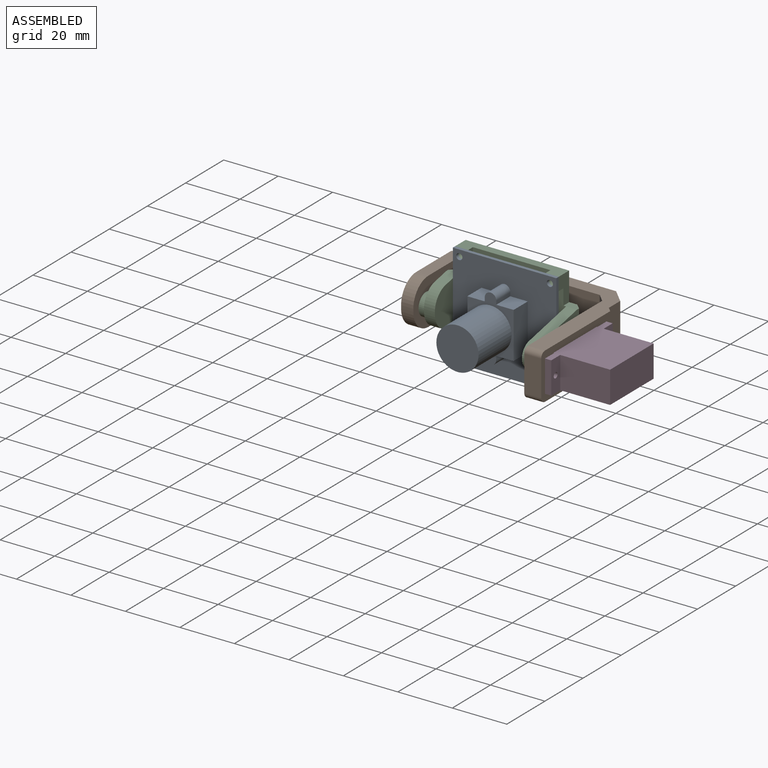
[diagram: assembled view]
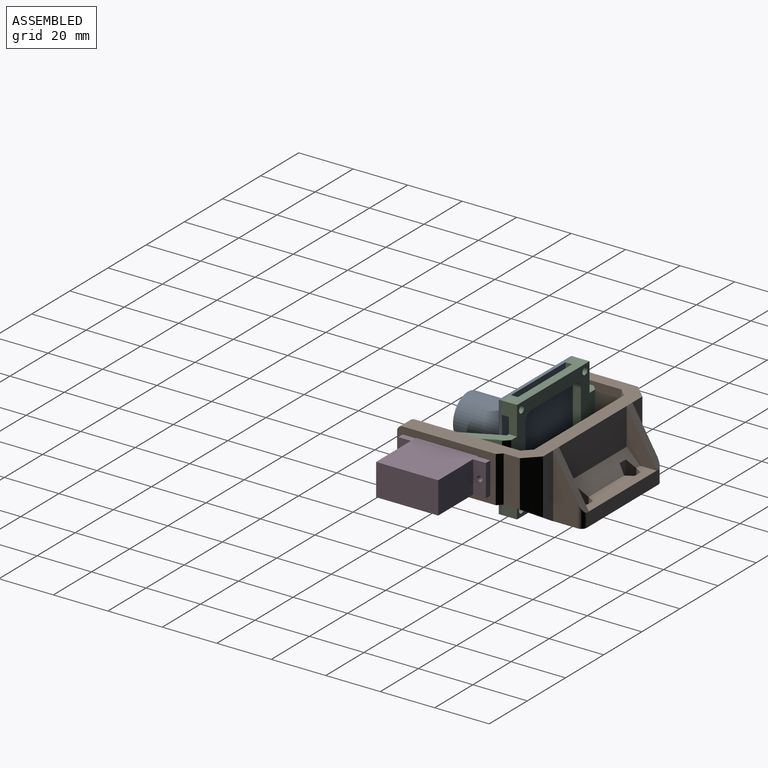
[diagram: assembled view, second angle]
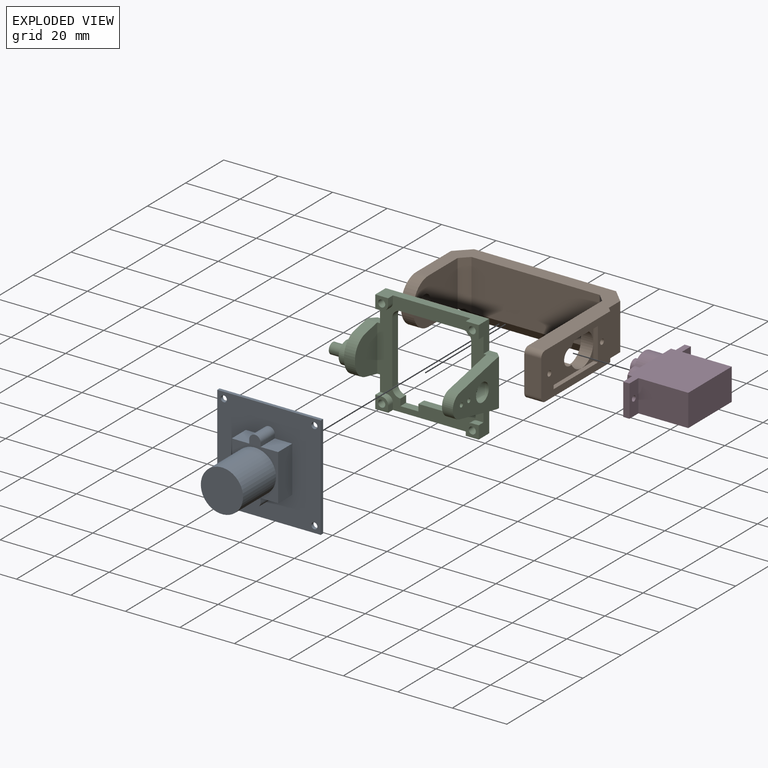
[diagram: exploded view]
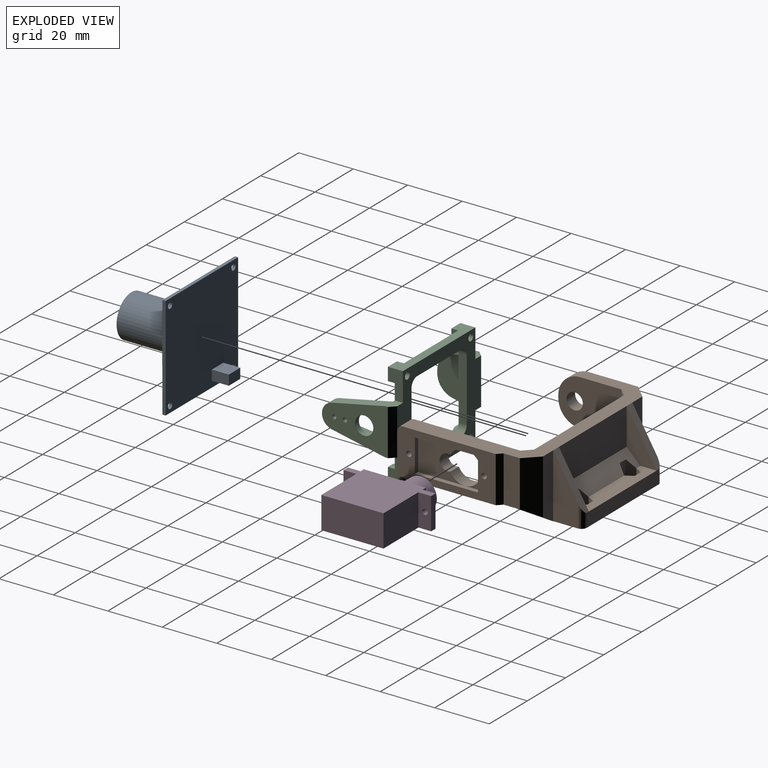
[diagram: exploded view, second angle]
ASSEMBLY  parts=4 mates=3
PART A: 30 faces, bbox 38x32.2x38 mm
  f0: plane 38x38mm, normal (0,-1,0), area 1113.5mm2, adj f1,f2,f3,f4,f5,f6,f7,f8
  f1: plane 38x1.2mm, normal (1,0,0), area 45.6mm2, adj f0,f2,f8,f9
  f2: plane 38x1.2mm, normal (0,0,1), area 45.6mm2, adj f0,f1,f3,f9
  f3: plane 38x1.2mm, normal (-1,0,0), area 45.6mm2, adj f0,f2,f8,f9
  f4: cylinder r=1.12mm len=2.25mm, axis (0,1,0), area 8.5mm2, adj f0,f9
  f5: cylinder r=1.12mm len=2.25mm, axis (0,1,0), area 8.5mm2, adj f0,f9
  f6: cylinder r=1.12mm len=2.25mm, axis (0,1,0), area 8.5mm2, adj f0,f9
  f7: cylinder r=1.12mm len=2.25mm, axis (0,1,0), area 8.5mm2, adj f0,f9
  f8: plane 38x1.2mm, normal (0,0,-1), area 45.6mm2, adj f0,f1,f3,f9
  f9: plane 38x38mm, normal (0,1,0), area 1405.9mm2, adj f1,f2,f3,f4,f5,f6,f7,f8
  f10: plane 7.4x6.4mm, normal (0,0,1), area 47.4mm2, adj f0,f11,f21,f22
  f11: plane 7.4x1.4mm, normal (1,0,0), area 10.4mm2, adj f0,f10,f12,f22
  f12: cylinder r=2.1mm len=7.4mm, axis (0,1,0), area 48.8mm2, adj f0,f11,f13,f22
  f13: plane 7.4x1.4mm, normal (-1,0,0), area 10.4mm2, adj f0,f12,f14,f22
  f14: plane 7.4x6.4mm, normal (0,0,1), area 47.4mm2, adj f0,f13,f15,f22
  f15: plane 17x7.4mm, normal (-1,0,0), area 125.8mm2, adj f0,f14,f16,f22
  f16: plane 7.4x6.4mm, normal (0,0,-1), area 47.4mm2, adj f0,f15,f17,f22
  f17: plane 7.4x1.4mm, normal (-1,0,0), area 10.4mm2, adj f0,f16,f18,f22
  f18: cylinder r=2.1mm len=7.4mm, axis (0,1,0), area 48.8mm2, adj f0,f17,f19,f22
  f19: plane 7.4x1.4mm, normal (1,0,0), area 10.4mm2, adj f0,f18,f20,f22
  f20: plane 7.4x6.4mm, normal (0,0,-1), area 47.4mm2, adj f0,f19,f21,f22
  f21: plane 17x7.4mm, normal (1,0,0), area 125.8mm2, adj f0,f10,f20,f22
  f22: plane 24x17mm, normal (0,-1,0), area 125.9mm2, adj f10,f11,f12,f13,f14,f15,f16,f17
  f23: cylinder r=7.75mm len=17.3mm, axis (0,1,0), area 842.4mm2, adj f22,f24
  f24: plane 15.5x15.5mm, normal (0,-1,0), area 188.7mm2, adj f23
  f25: plane 6.25x3.7mm, normal (-1,0,0), area 23.1mm2, adj f9,f26,f28,f29
  f26: plane 6.25x6mm, normal (0,0,-1), area 37.5mm2, adj f9,f25,f27,f29
  f27: plane 6.25x3.7mm, normal (1,0,0), area 23.1mm2, adj f9,f26,f28,f29
  f28: plane 6.25x6mm, normal (0,0,1), area 37.5mm2, adj f9,f25,f27,f29
  f29: plane 6x3.7mm, normal (0,1,0), area 22.2mm2, adj f25,f26,f27,f28
PART B: 80 faces, bbox 63.8x59.9x23.5 mm
  f0: plane 40.85x17mm, normal (-1,0,0), area 533.8mm2, adj f28,f42,f43,f46,f47,f57,f58,f64
  f1: plane 17.15x12.1mm, normal (1,0,0), area 133.8mm2, adj f49,f50,f52,f57,f58
  f2: plane 6.05x6.05mm, normal (1,0,0), area 7.9mm2, adj f49,f51,f58
  f3: plane 17x5.95mm, normal (1,0,0), area 101.2mm2, adj f28,f31,f42,f56,f63
  f4: plane 47.1x18.5mm, normal (0,-1,0), area 871.4mm2, adj f28,f37,f64,f65
  f5: plane 35.5x13.5mm, normal (0,1,0), area 479.3mm2, adj f28,f33,f34,f38
  f6: plane 35.5x6mm, normal (0,0,1), area 186.3mm2, adj f9,f15,f16,f17,f22,f23,f24,f33
  f7: plane 23.5x5.35mm, normal (0,1,0), area 117mm2, adj f8,f28,f31,f37,f63
  f8: plane 23.5x9mm, normal (1,0,0), area 143.4mm2, adj f7,f11,f36,f60
  f9: plane 37.5x5mm, normal (0,1,0), area 187.5mm2, adj f6,f11,f35,f36,f60,f61
  f10: plane 23.5x9mm, normal (-1,0,0), area 143.4mm2, adj f11,f29,f35,f61
  f11: plane 41.5x11mm, normal (0,0,-1), area 435.5mm2, adj f8,f9,f10,f12,f13,f37,f60,f61
  f12: cylinder r=1.75mm len=3.5mm, axis (0,0,-1), area 22mm2, adj f11,f27
  f13: cylinder r=1.75mm len=3.5mm, axis (0,0,-1), area 22mm2, adj f11,f20
  f14: plane 5.78x2.78mm, normal (-0.87,0.5,0), area 14.1mm2, adj f15,f19,f20,f38
  f15: plane 3x2.78mm, normal (-0.87,-0.5,0), area 9.6mm2, adj f6,f14,f16,f20
  f16: plane 3.2x3mm, normal (0,-1,0), area 9.6mm2, adj f6,f15,f17,f20
  f17: plane 3x2.78mm, normal (0.87,-0.5,0), area 9.6mm2, adj f6,f16,f18,f20
  f18: plane 5.78x2.78mm, normal (0.87,0.5,0), area 14.1mm2, adj f17,f19,f20,f38
  f19: plane 5.78x3.2mm, normal (0,1,0), area 18.5mm2, adj f14,f18,f20,f38
  f20: plane 6.41x5.55mm, normal (0,0,1), area 17.1mm2, adj f13,f14,f15,f16,f17,f18,f19
  f21: plane 5.78x2.78mm, normal (-0.87,0.5,0), area 14.1mm2, adj f22,f26,f27,f38
  f22: plane 3x2.78mm, normal (-0.87,-0.5,0), area 9.6mm2, adj f6,f21,f23,f27
  f23: plane 3.2x3mm, normal (0,-1,0), area 9.6mm2, adj f6,f22,f24,f27
  f24: plane 3x2.78mm, normal (0.87,-0.5,0), area 9.6mm2, adj f6,f23,f25,f27
  f25: plane 5.78x2.78mm, normal (0.87,0.5,0), area 14.1mm2, adj f24,f26,f27,f38
  f26: plane 5.78x3.2mm, normal (0,1,0), area 18.5mm2, adj f21,f25,f27,f38
  f27: plane 6.41x5.55mm, normal (0,0,1), area 17.1mm2, adj f12,f21,f22,f23,f24,f25,f26
  f28: plane 63.8x46.85mm, normal (0,0,1), area 624.3mm2, adj f0,f3,f4,f5,f7,f29,f30,f35
  f29: plane 23.5x5.25mm, normal (0,1,0), area 114.6mm2, adj f10,f28,f32,f62
  f30: plane 26.2x17mm, normal (-1,0,0), area 389.7mm2, adj f28,f32,f40,f41,f44,f45,f59,f62
  f31: plane 10.25x6.5mm, normal (0.54,0,-0.84), area 24.6mm2, adj f3,f7,f37,f63
  f32: plane 10.25x6.5mm, normal (-0.54,0,-0.84), area 24.6mm2, adj f29,f30,f37,f62
  f33: plane 18.5x11mm, normal (-1,0,0), area 89.3mm2, adj f5,f6,f36,f38
  f34: plane 18.5x11mm, normal (1,0,0), area 89.3mm2, adj f5,f6,f35,f38
  f35: plane 18.5x11mm, normal (0,0.86,0.51), area 62.9mm2, adj f9,f10,f28,f34,f61
  f36: plane 18.5x11mm, normal (0,0.86,0.51), area 62.9mm2, adj f8,f9,f28,f33,f60
  f37: plane 62.1x6.5mm, normal (0,-0.71,-0.71), area 373.5mm2, adj f4,f7,f11,f31,f32,f40,f42,f64
  f38: plane 35.5x5mm, normal (0,0.71,0.71), area 213.3mm2, adj f5,f6,f14,f18,f19,f21,f25,f26
  f39: plane 23.2x17mm, normal (1,0,0), area 338.7mm2, adj f28,f40,f41,f44,f45,f59,f65
  f40: plane 16.7x6mm, normal (0,0,-1), area 76.3mm2, adj f30,f37,f39,f45,f65
  f41: plane 4.5x1mm, normal (0,-1,0), area 4.5mm2, adj f30,f39,f44,f45
  f42: plane 40.35x7.7mm, normal (0,0,-1), area 242.3mm2, adj f0,f3,f37,f46,f48,f56,f64
  f43: plane 13x6.2mm, normal (0,-1,0), area 80.6mm2, adj f0,f46,f47,f48
  f44: cylinder r=8mm len=8mm, axis (-1,0,0), area 56.5mm2, adj f28,f30,f39,f41
  f45: cylinder r=8mm len=8mm, axis (-1,0,0), area 56.5mm2, adj f30,f39,f40,f41
  f46: cylinder r=2mm len=6.2mm, axis (-1,0,0), area 19.5mm2, adj f0,f42,f43,f48
  f47: cylinder r=2mm len=6.2mm, axis (-1,0,0), area 19.5mm2, adj f0,f28,f43,f48
  f48: plane 36.2x17mm, normal (1,0,0), area 326.7mm2, adj f28,f42,f43,f46,f47,f49,f50,f51
  f49: plane 23.2x1.7mm, normal (0,0,1), area 39.4mm2, adj f1,f2,f48,f50,f51
  f50: plane 12.1x1.7mm, normal (0,1,0), area 20.6mm2, adj f1,f48,f49,f52
  f51: plane 12.1x1.7mm, normal (0,-1,0), area 20.6mm2, adj f2,f48,f49,f52,f55
  f52: plane 23.2x1.7mm, normal (0,0,-1), area 39.4mm2, adj f1,f48,f50,f51,f55
  f53: cylinder r=1mm len=4.7mm, axis (-1,0,0), area 29.5mm2, adj f48,f79
  f54: cylinder r=1mm len=4.7mm, axis (-1,0,0), area 29.5mm2, adj f48,f72
  f55: plane 6.05x6.05mm, normal (1,0,0), area 7.9mm2, adj f51,f52,f58
  f56: plane 17x1.7mm, normal (0.71,0.71,0), area 40.9mm2, adj f3,f28,f42,f48
  f57: cylinder r=2.95mm len=5.9mm, axis (1,0,0), area 49.9mm2, adj f0,f1,f58
  f58: cylinder r=6.05mm len=12.1mm, axis (1,0,0), area 144.7mm2, adj f0,f1,f2,f55,f57
  f59: cylinder r=3mm len=6mm, axis (-1,0,0), area 84.8mm2, adj f30,f39
  f60: cylinder r=2mm len=8.36mm, axis (0,0,-1), area 19.5mm2, adj f8,f9,f11,f36
  f61: cylinder r=2mm len=8.36mm, axis (0,0,1), area 19.5mm2, adj f9,f10,f11,f35
  f62: plane 20.17x5mm, normal (-0.71,0.71,0), area 131.4mm2, adj f28,f29,f30,f32
  f63: plane 20.17x5mm, normal (0.71,0.71,0), area 131.4mm2, adj f3,f7,f28,f31
  f64: plane 18.5x3mm, normal (-0.71,-0.71,0), area 73.7mm2, adj f0,f4,f28,f37,f42
  f65: plane 18.5x3mm, normal (0.71,-0.71,0), area 73.7mm2, adj f4,f28,f37,f39,f40
  f66: plane 2x1.5mm, normal (0,0.5,-0.87), area 3.5mm2, adj f0,f67,f71,f72
  f67: plane 2x1.5mm, normal (0,-0.5,-0.87), area 3.5mm2, adj f0,f66,f68,f72
  f68: plane 2.31x1.5mm, normal (0,-1,0), area 3.5mm2, adj f0,f67,f69,f72
  f69: plane 2x1.5mm, normal (0,-0.5,0.87), area 3.5mm2, adj f0,f68,f70,f72
  f70: plane 2x1.5mm, normal (0,0.5,0.87), area 3.5mm2, adj f0,f69,f71,f72
  f71: plane 2.31x1.5mm, normal (0,1,0), area 3.5mm2, adj f0,f66,f70,f72
  f72: plane 4.62x4mm, normal (-1,0,0), area 10.7mm2, adj f54,f66,f67,f68,f69,f70,f71
  f73: plane 2x1.5mm, normal (0,-0.5,0.87), area 3.5mm2, adj f0,f74,f78,f79
  f74: plane 2x1.5mm, normal (0,0.5,0.87), area 3.5mm2, adj f0,f73,f75,f79
  f75: plane 2.31x1.5mm, normal (0,1,0), area 3.5mm2, adj f0,f74,f76,f79
  f76: plane 2x1.5mm, normal (0,0.5,-0.87), area 3.5mm2, adj f0,f75,f77,f79
  f77: plane 2x1.5mm, normal (0,-0.5,-0.87), area 3.5mm2, adj f0,f76,f78,f79
  f78: plane 2.31x1.5mm, normal (0,-1,0), area 3.5mm2, adj f0,f73,f77,f79
  f79: plane 4.62x4mm, normal (-1,0,0), area 10.7mm2, adj f53,f73,f74,f75,f76,f77,f78
PART C: 68 faces, bbox 55x26.2x38 mm
  f0: plane 17x12.7mm, normal (-1,0,0), area 124.4mm2, adj f17,f18,f56,f57,f58,f60,f64,f65
  f1: plane 40x38mm, normal (0,-1,0), area 542.8mm2, adj f2,f3,f4,f5,f6,f7,f8,f9
  f2: plane 3x2.5mm, normal (1,0,0), area 7.5mm2, adj f1,f19,f20,f37
  f3: plane 23x3mm, normal (1,0,0), area 69mm2, adj f1,f20,f37,f38
  f4: plane 23x3mm, normal (0,0,-1), area 69mm2, adj f1,f20,f38,f39
  f5: plane 23x3mm, normal (-1,0,0), area 69mm2, adj f1,f20,f39,f40
  f6: plane 16.4x3mm, normal (0,0,1), area 49.2mm2, adj f1,f7,f20,f40
  f7: plane 3x2.5mm, normal (-1,0,0), area 7.5mm2, adj f1,f6,f19,f20
  f8: plane 10.5x5.5mm, normal (-1,0,0), area 43.4mm2, adj f1,f9,f18,f20,f35,f36
  f9: plane 38x5.5mm, normal (0,0,-1), area 137.7mm2, adj f1,f8,f10,f20,f23,f24,f33,f36
  f10: plane 10.5x5.5mm, normal (1,0,0), area 43.4mm2, adj f1,f9,f11,f20,f21,f24
  f11: plane 5x3mm, normal (0,0,-1), area 13mm2, adj f1,f10,f12,f20,f45,f66
  f12: plane 24.22x17mm, normal (1,0,0), area 255mm2, adj f11,f13,f45,f46,f48,f51,f54,f55
  f13: plane 5x3mm, normal (0,0,1), area 13mm2, adj f1,f12,f14,f20,f46,f66
  f14: plane 10.5x5.5mm, normal (1,0,0), area 43.4mm2, adj f1,f13,f15,f20,f26,f28
  f15: plane 38x5.5mm, normal (0,0,1), area 137.7mm2, adj f1,f14,f16,f20,f27,f28,f30,f32
  f16: plane 10.5x5.5mm, normal (-1,0,0), area 43.4mm2, adj f1,f15,f17,f20,f31,f32
  f17: plane 5x3mm, normal (0,0,1), area 13mm2, adj f0,f1,f16,f20,f58,f67
  f18: plane 5x3mm, normal (0,0,-1), area 13mm2, adj f0,f1,f8,f20,f56,f67
  f19: plane 6.6x3mm, normal (0,0,1), area 19.8mm2, adj f1,f2,f7,f20
  f20: plane 44x38mm, normal (0,1,0), area 675mm2, adj f2,f3,f4,f5,f6,f7,f8,f9
  f21: plane 2.5x2.38mm, normal (0,0,1), area 5.9mm2, adj f1,f10,f22,f24
  f22: cylinder r=2.38mm len=2.5mm, axis (0,1,0), area 9.3mm2, adj f1,f21,f23,f24
  f23: plane 2.5x2.38mm, normal (-1,0,0), area 5.9mm2, adj f1,f9,f22,f24
  f24: plane 4.75x4.75mm, normal (0,-1,0), area 16mm2, adj f9,f10,f21,f22,f23,f44
  f25: cylinder r=2.38mm len=2.5mm, axis (0,1,0), area 9.3mm2, adj f1,f26,f27,f28
  f26: plane 2.5x2.38mm, normal (0,0,-1), area 5.9mm2, adj f1,f14,f25,f28
  f27: plane 2.5x2.38mm, normal (-1,0,0), area 5.9mm2, adj f1,f15,f25,f28
  f28: plane 4.75x4.75mm, normal (0,-1,0), area 16mm2, adj f14,f15,f25,f26,f27,f42
  f29: cylinder r=2.38mm len=2.5mm, axis (0,1,0), area 9.3mm2, adj f1,f30,f31,f32
  f30: plane 2.5x2.38mm, normal (1,0,0), area 5.9mm2, adj f1,f15,f29,f32
  f31: plane 2.5x2.38mm, normal (0,0,-1), area 5.9mm2, adj f1,f16,f29,f32
  f32: plane 4.75x4.75mm, normal (0,-1,0), area 16mm2, adj f15,f16,f29,f30,f31,f41
  f33: plane 2.5x2.38mm, normal (1,0,0), area 5.9mm2, adj f1,f9,f34,f36
  f34: cylinder r=2.38mm len=2.5mm, axis (0,1,0), area 9.3mm2, adj f1,f33,f35,f36
  f35: plane 2.5x2.38mm, normal (0,0,1), area 5.9mm2, adj f1,f8,f34,f36
  f36: plane 4.75x4.75mm, normal (0,-1,0), area 16mm2, adj f8,f9,f33,f34,f35,f43
  f37: cylinder r=3mm len=3mm, axis (0,1,0), area 14.1mm2, adj f1,f2,f3,f20
  f38: cylinder r=3mm len=3mm, axis (0,-1,0), area 14.1mm2, adj f1,f3,f4,f20
  f39: cylinder r=3mm len=3mm, axis (0,1,0), area 14.1mm2, adj f1,f4,f5,f20
  f40: cylinder r=3mm len=3mm, axis (0,-1,0), area 14.1mm2, adj f1,f5,f6,f20
  f41: cylinder r=1.3mm len=5.5mm, axis (0,1,0), area 44.9mm2, adj f20,f32
  f42: cylinder r=1.3mm len=5.5mm, axis (0,1,0), area 44.9mm2, adj f20,f28
  f43: cylinder r=1.3mm len=5.5mm, axis (0,1,0), area 44.9mm2, adj f20,f36
  f44: cylinder r=1.3mm len=5.5mm, axis (0,1,0), area 44.9mm2, adj f20,f24
  f45: plane 19.62x4.08mm, normal (0,-0.2,-0.98), area 80.2mm2, adj f11,f12,f51,f52
  f46: plane 19.62x4.08mm, normal (0,-0.2,0.98), area 80.2mm2, adj f12,f13,f51,f52
  f47: plane 10.84x2mm, normal (0,0.12,-0.99), area 21.8mm2, adj f48,f50,f52,f53
  f48: cylinder r=3.35mm len=6.7mm, axis (1,0,0), area 64.8mm2, adj f12,f47,f49,f52,f53
  f49: plane 10.84x2mm, normal (0,0.12,0.99), area 21.8mm2, adj f48,f50,f52,f53
  f50: cylinder r=2.01mm len=4mm, axis (1,0,0), area 11.7mm2, adj f47,f49,f52,f53
  f51: cylinder r=4.51mm len=8.84mm, axis (1,0,0), area 49.3mm2, adj f12,f45,f46,f52
  f52: plane 23.22x17mm, normal (-1,0,0), area 193.8mm2, adj f1,f45,f46,f47,f48,f49,f50,f51
  f53: plane 12.61x6.65mm, normal (-1,0,0), area 44.2mm2, adj f47,f48,f49,f50,f54,f55
  f54: cylinder r=0.8mm len=2mm, axis (1,0,0), area 10.1mm2, adj f12,f53
  f55: cylinder r=0.8mm len=2mm, axis (1,0,0), area 10.1mm2, adj f12,f53
  f56: plane 6.13x4mm, normal (0,-0.2,-0.98), area 25mm2, adj f0,f18,f59,f64
  f57: plane 4x0.75mm, normal (0,-1,0), area 3mm2, adj f0,f59,f64,f65
  f58: plane 6.13x4mm, normal (0,-0.2,0.98), area 25mm2, adj f0,f17,f59,f65
  f59: plane 17x11.7mm, normal (1,0,0), area 157.6mm2, adj f1,f56,f57,f58,f64,f65
  f60: cylinder r=4mm len=8mm, axis (1,0,0), area 50.3mm2, adj f0,f61
  f61: plane 8x8mm, normal (-1,0,0), area 37.7mm2, adj f60,f63
  f62: plane 4x4mm, normal (-1,0,0), area 12.6mm2, adj f63
  f63: cylinder r=2mm len=5mm, axis (1,0,0), area 62.8mm2, adj f61,f62
  f64: cylinder r=7mm len=6.85mm, axis (1,0,0), area 38.2mm2, adj f0,f56,f57,f59
  f65: cylinder r=7mm len=6.85mm, axis (-1,0,0), area 38.2mm2, adj f0,f57,f58,f59
  f66: plane 17x2mm, normal (0.71,0.71,0), area 48.1mm2, adj f11,f12,f13,f20
  f67: plane 17x2mm, normal (-0.71,0.71,0), area 48.1mm2, adj f0,f17,f18,f20
PART D: 25 faces, bbox 31.7x32.2x11.7 mm
  f0: plane 5.85x5.85mm, normal (-1,0,0), area 7.3mm2, adj f8,f12,f21
  f1: plane 32.2x22.3mm, normal (0,0,-1), area 530.1mm2, adj f2,f10,f11,f13,f14,f15,f16,f17
  f2: plane 16.95x11.7mm, normal (-1,0,0), area 129.3mm2, adj f1,f5,f6,f7,f8,f12,f19
  f3: cylinder r=2.25mm len=4.5mm, axis (1,0,0), area 52.3mm2, adj f4,f9
  f4: plane 4.5x4.5mm, normal (-1,0,0), area 15.9mm2, adj f3
  f5: plane 5.7x1.09mm, normal (0,0,1), area 6.2mm2, adj f2,f6,f8,f9
  f6: cylinder r=2.75mm len=5.7mm, axis (-1,0,0), area 49.2mm2, adj f2,f5,f7,f9
  f7: plane 5.7x1.09mm, normal (0,0,-1), area 6.2mm2, adj f2,f6,f8,f9
  f8: cylinder r=5.85mm len=11.7mm, axis (-1,0,0), area 176.9mm2, adj f0,f2,f5,f7,f9,f10
  f9: plane 14.85x11.7mm, normal (-1,0,0), area 106.9mm2, adj f3,f5,f6,f7,f8
  f10: plane 5.85x5.85mm, normal (-1,0,0), area 7.3mm2, adj f1,f8,f21
  f11: plane 18.3x11.7mm, normal (0,1,0), area 214.1mm2, adj f1,f12,f14,f16
  f12: plane 32.2x22.3mm, normal (0,0,1), area 530.1mm2, adj f0,f2,f11,f13,f14,f15,f16,f17
  f13: plane 18.3x11.7mm, normal (0,-1,0), area 214.1mm2, adj f1,f12,f14,f18
  f14: plane 22.8x11.7mm, normal (1,0,0), area 266.8mm2, adj f1,f11,f12,f13
  f15: plane 11.7x2.3mm, normal (0,1,0), area 26.9mm2, adj f1,f12,f16,f22
  f16: plane 11.7x4.7mm, normal (1,0,0), area 51.8mm2, adj f1,f11,f12,f15,f24
  f17: plane 11.7x2.3mm, normal (0,-1,0), area 26.9mm2, adj f1,f12,f18,f20
  f18: plane 11.7x4.7mm, normal (1,0,0), area 51.8mm2, adj f1,f12,f13,f17,f23
  f19: plane 11.7x1.7mm, normal (0,-1,0), area 19.9mm2, adj f1,f2,f12,f20
  f20: plane 11.7x4.7mm, normal (-1,0,0), area 51.8mm2, adj f1,f12,f17,f19,f23
  f21: plane 11.7x1.7mm, normal (0,1,0), area 19.9mm2, adj f0,f1,f10,f12,f22
  f22: plane 11.7x4.7mm, normal (-1,0,0), area 51.8mm2, adj f1,f12,f15,f21,f24
  f23: cylinder r=1mm len=2.3mm, axis (-1,0,0), area 14.5mm2, adj f18,f20
  f24: cylinder r=1mm len=2.3mm, axis (-1,0,0), area 14.5mm2, adj f16,f22
PLACE A at identity
PLACE B at identity
PLACE C at identity
PLACE D at identity
MATE fastened A.f4 <-> C.f29  axis (0,1,0) through (-16.63,0,16.62)mm
MATE fastened B.f54 <-> D.f23  axis (1,0,0) through (32.8,-24.55,0)mm
MATE revolute C.f60 <-> B.f59  axis (-1,0,0) through (-31,-5.2,0)mm
